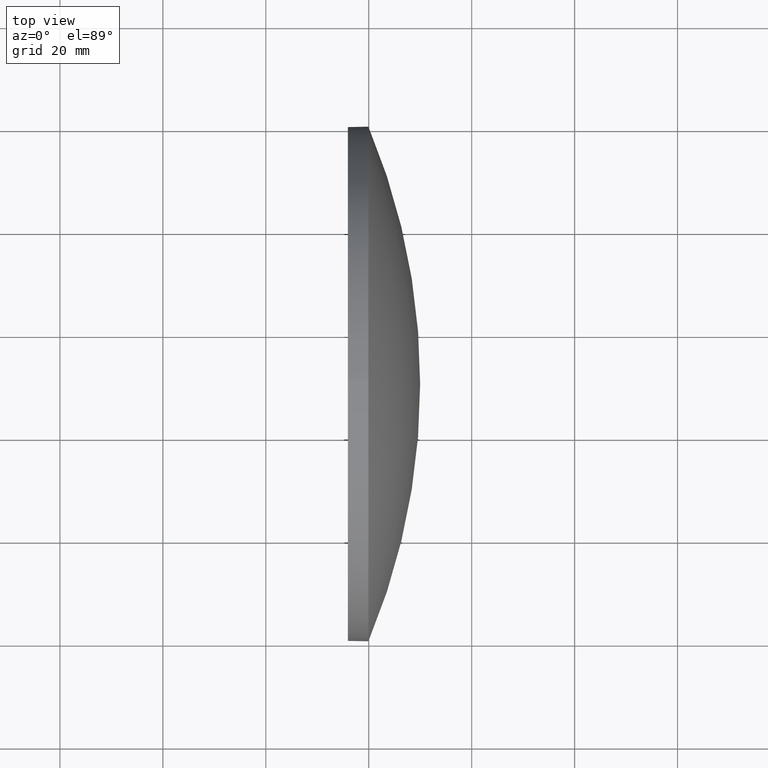
[diagram: clean part render]
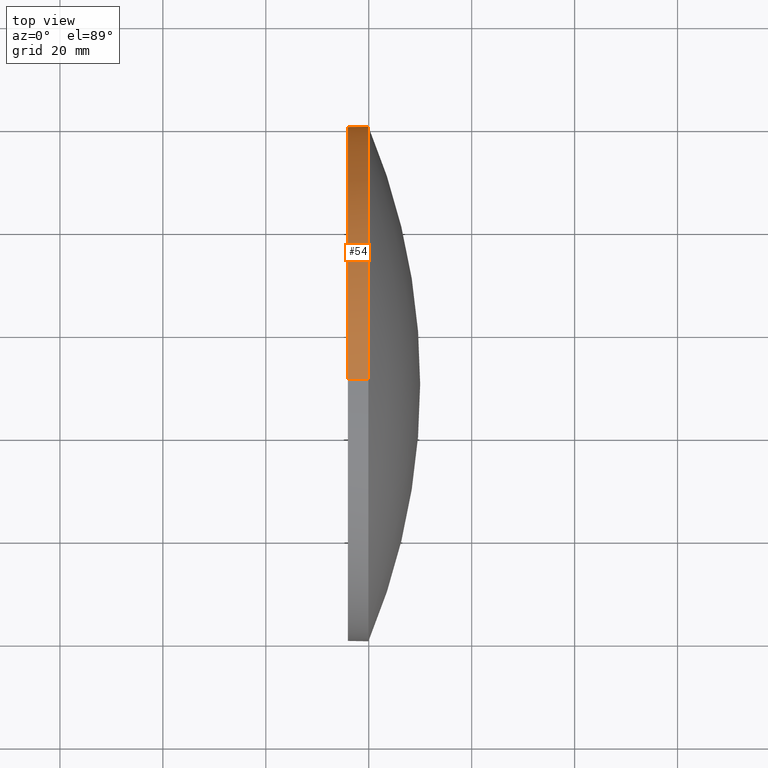
[diagram: same view with one face highlighted and labeled with its STEP entity id]
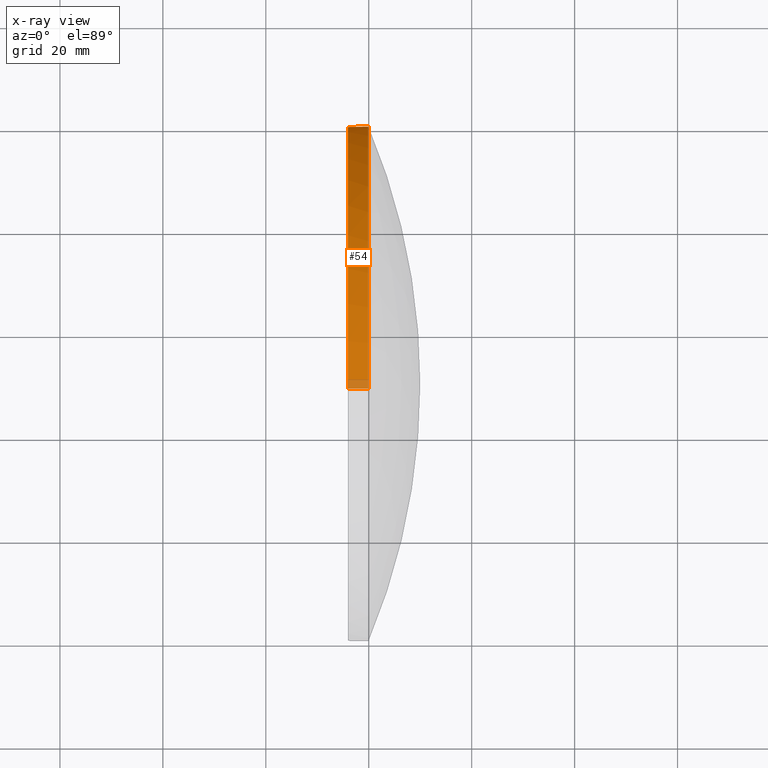
[diagram: x-ray of the same camera — body ghosted, the highlighted face saturated]
A machine part, top view. The second image highlights one B-rep face of the part: STEP entity #54.
The next image is the same camera in x-ray: the body ghosted, the highlighted face saturated — about 3% of this face is hidden behind the body in this view.
In plain terms, the highlighted cylindrical surface (partial cylindrical patch) has radius 50 mm, axis along (-1, -0, -0).
Its self-contained STEP definition (entity closure, byte-faithful):
#4 = VERTEX_POINT ( 'NONE', #12 ) ;
#11 = CARTESIAN_POINT ( 'NONE',  ( 239.9389074292314500, 180.0418907599244800, 6.123233995736760600E-015 ) ) ;
#12 = CARTESIAN_POINT ( 'NONE',  ( 239.9389074292314500, 130.0418907599245100, -50.00000000000001400 ) ) ;
#14 = EDGE_CURVE ( 'NONE', #101, #59, #132, .T. ) ;
#15 = AXIS2_PLACEMENT_3D ( 'NONE', #169, #130, #86 ) ;
#16 = CARTESIAN_POINT ( 'NONE',  ( 217.3311486608872700, 130.0418907599245100, -50.00000000000001400 ) ) ;
#23 = CIRCLE ( 'NONE', #137, 50.00000000000001400 ) ;
#24 = EDGE_CURVE ( 'NONE', #73, #4, #140, .T. ) ;
#26 = DIRECTION ( 'NONE',  ( 0.0000000000000000000, 0.0000000000000000000, 1.000000000000000000 ) ) ;
#28 = CARTESIAN_POINT ( 'NONE',  ( 239.9389074292314500, 130.0418907599245100, 0.0000000000000000000 ) ) ;
#35 = EDGE_CURVE ( 'NONE', #101, #73, #136, .T. ) ;
#40 = ORIENTED_EDGE ( 'NONE', *, *, #74, .F. ) ;
#41 = CARTESIAN_POINT ( 'NONE',  ( 217.3311486608872700, 130.0418907599245100, 50.00000000000001400 ) ) ;
#43 = ORIENTED_EDGE ( 'NONE', *, *, #166, .T. ) ;
#49 = LINE ( 'NONE', #16, #64 ) ;
#54 = ADVANCED_FACE ( 'NONE', ( #172 ), #113, .T. ) ;
#59 = VERTEX_POINT ( 'NONE', #100 ) ;
#64 = VECTOR ( 'NONE', #174, 1000.000000000000000 ) ;
#73 = VERTEX_POINT ( 'NONE', #11 ) ;
#74 = EDGE_CURVE ( 'NONE', #59, #145, #23, .T. ) ;
#75 = ORIENTED_EDGE ( 'NONE', *, *, #35, .T. ) ;
#82 = VECTOR ( 'NONE', #184, 1000.000000000000000 ) ;
#86 = DIRECTION ( 'NONE',  ( 0.0000000000000000000, 0.0000000000000000000, 1.000000000000000000 ) ) ;
#90 = DIRECTION ( 'NONE',  ( -1.000000000000000000, -0.0000000000000000000, -0.0000000000000000000 ) ) ;
#97 = AXIS2_PLACEMENT_3D ( 'NONE', #159, #90, #26 ) ;
#98 = AXIS2_PLACEMENT_3D ( 'NONE', #28, #141, #143 ) ;
#100 = CARTESIAN_POINT ( 'NONE',  ( 235.9389074292314500, 130.0418907599245100, 50.00000000000001400 ) ) ;
#101 = VERTEX_POINT ( 'NONE', #121 ) ;
#106 = CARTESIAN_POINT ( 'NONE',  ( 235.9389074292314500, 130.0418907599245100, 0.0000000000000000000 ) ) ;
#113 = CYLINDRICAL_SURFACE ( 'NONE', #97, 50.00000000000001400 ) ;
#121 = CARTESIAN_POINT ( 'NONE',  ( 239.9389074292314500, 130.0418907599245100, 50.00000000000001400 ) ) ;
#122 = DIRECTION ( 'NONE',  ( -1.000000000000000000, -0.0000000000000000000, -0.0000000000000000000 ) ) ;
#123 = DIRECTION ( 'NONE',  ( 0.0000000000000000000, 0.0000000000000000000, 1.000000000000000000 ) ) ;
#130 = DIRECTION ( 'NONE',  ( -1.000000000000000000, -0.0000000000000000000, -0.0000000000000000000 ) ) ;
#132 = LINE ( 'NONE', #41, #82 ) ;
#133 = CARTESIAN_POINT ( 'NONE',  ( 235.9389074292314500, 130.0418907599245100, -50.00000000000001400 ) ) ;
#136 = CIRCLE ( 'NONE', #15, 50.00000000000001400 ) ;
#137 = AXIS2_PLACEMENT_3D ( 'NONE', #106, #122, #123 ) ;
#140 = CIRCLE ( 'NONE', #98, 50.00000000000001400 ) ;
#141 = DIRECTION ( 'NONE',  ( -1.000000000000000000, -0.0000000000000000000, -0.0000000000000000000 ) ) ;
#143 = DIRECTION ( 'NONE',  ( 0.0000000000000000000, 0.0000000000000000000, 1.000000000000000000 ) ) ;
#145 = VERTEX_POINT ( 'NONE', #133 ) ;
#153 = ORIENTED_EDGE ( 'NONE', *, *, #24, .T. ) ;
#159 = CARTESIAN_POINT ( 'NONE',  ( 217.3311486608872700, 130.0418907599245100, 0.0000000000000000000 ) ) ;
#166 = EDGE_CURVE ( 'NONE', #4, #145, #49, .T. ) ;
#169 = CARTESIAN_POINT ( 'NONE',  ( 239.9389074292314500, 130.0418907599245100, 0.0000000000000000000 ) ) ;
#172 = FACE_OUTER_BOUND ( 'NONE', #183, .T. ) ;
#174 = DIRECTION ( 'NONE',  ( -1.000000000000000000, -0.0000000000000000000, -0.0000000000000000000 ) ) ;
#179 = ORIENTED_EDGE ( 'NONE', *, *, #14, .F. ) ;
#183 = EDGE_LOOP ( 'NONE', ( #153, #43, #40, #179, #75 ) ) ;
#184 = DIRECTION ( 'NONE',  ( -1.000000000000000000, -0.0000000000000000000, -0.0000000000000000000 ) ) ;